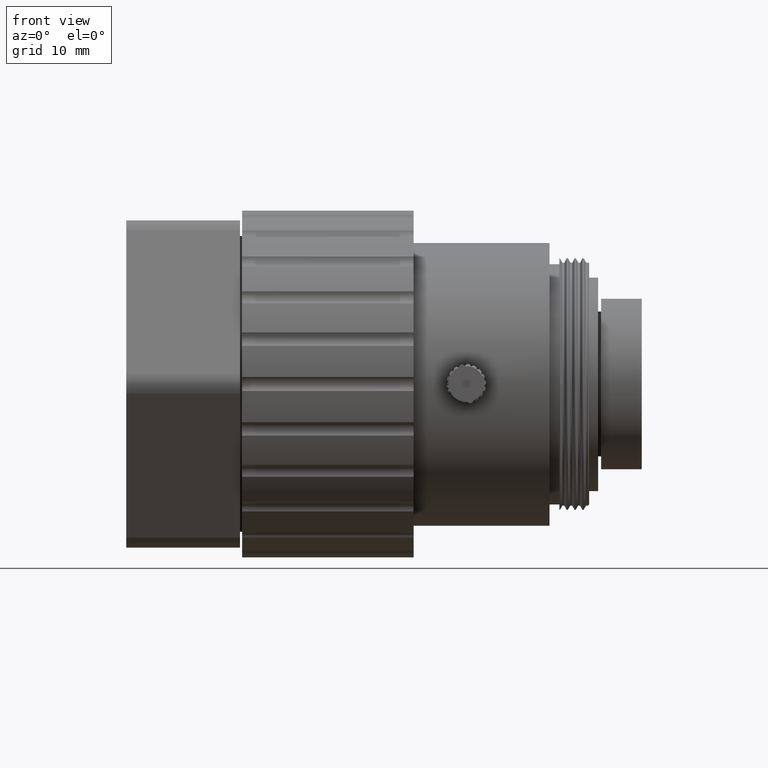
[diagram: clean part render]
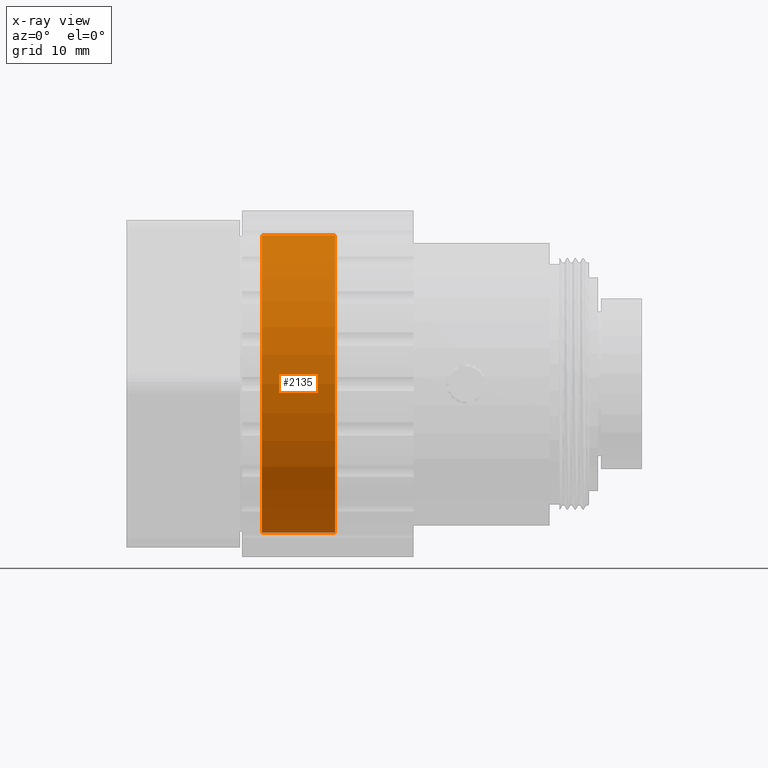
[diagram: x-ray — body ghosted, one internal face saturated and labeled with its STEP entity id]
A machine part, front view, then the same camera in x-ray: the body is ghosted and one INTERNAL B-rep face — a face not visible from any outside direction — is saturated and labeled: STEP entity #2135.
In plain terms, the highlighted cylindrical surface (bore or boss wall) has radius 15 mm, axis along (1, -0, -0).
Its self-contained STEP definition (entity closure, byte-faithful):
#118 = CYLINDRICAL_SURFACE ( 'NONE', #8766, 15.00000270789403345 ) ;
#920 = CARTESIAN_POINT ( 'NONE',  ( 10436.37415006260744, -3043.346037136861469, -15.00000270789403345 ) ) ;
#1900 = VERTEX_POINT ( 'NONE', #3192 ) ;
#2135 = ADVANCED_FACE ( 'NONE', ( #5645, #10098 ), #118, .F. ) ;
#2155 = CIRCLE ( 'NONE', #3075, 15.00000270789403345 ) ;
#2171 = EDGE_LOOP ( 'NONE', ( #5891 ) ) ;
#2452 = EDGE_LOOP ( 'NONE', ( #13500 ) ) ;
#2969 = CIRCLE ( 'NONE', #7822, 15.00000270789403345 ) ;
#3075 = AXIS2_PLACEMENT_3D ( 'NONE', #12345, #7956, #4474 ) ;
#3192 = CARTESIAN_POINT ( 'NONE',  ( 10443.77164489643110, -3043.346037136861469, -15.00000270789403345 ) ) ;
#3839 = CARTESIAN_POINT ( 'NONE',  ( 10473.70570216309352, -3043.346037136861469, 0.000000000000000000 ) ) ;
#3994 = EDGE_CURVE ( 'NONE', #1900, #1900, #2969, .T. ) ;
#4474 = DIRECTION ( 'NONE',  ( 0.000000000000000000, 0.000000000000000000, -1.000000000000000000 ) ) ;
#4869 = DIRECTION ( 'NONE',  ( 0.000000000000000000, 0.000000000000000000, -1.000000000000000000 ) ) ;
#4922 = DIRECTION ( 'NONE',  ( 0.000000000000000000, 0.000000000000000000, -1.000000000000000000 ) ) ;
#4940 = CARTESIAN_POINT ( 'NONE',  ( 10443.77164489643110, -3043.346037136861469, 0.000000000000000000 ) ) ;
#5645 = FACE_OUTER_BOUND ( 'NONE', #2452, .T. ) ;
#5891 = ORIENTED_EDGE ( 'NONE', *, *, #3994, .F. ) ;
#5952 = DIRECTION ( 'NONE',  ( -1.000000000000000000, 0.000000000000000000, 0.000000000000000000 ) ) ;
#7382 = VERTEX_POINT ( 'NONE', #920 ) ;
#7822 = AXIS2_PLACEMENT_3D ( 'NONE', #4940, #5952, #4869 ) ;
#7956 = DIRECTION ( 'NONE',  ( 1.000000000000000000, -0.000000000000000000, -0.000000000000000000 ) ) ;
#8481 = DIRECTION ( 'NONE',  ( 1.000000000000000000, -0.000000000000000000, -0.000000000000000000 ) ) ;
#8766 = AXIS2_PLACEMENT_3D ( 'NONE', #3839, #8481, #4922 ) ;
#10098 = FACE_OUTER_BOUND ( 'NONE', #2171, .T. ) ;
#12345 = CARTESIAN_POINT ( 'NONE',  ( 10436.37415006260744, -3043.346037136861469, 0.000000000000000000 ) ) ;
#12764 = EDGE_CURVE ( 'NONE', #7382, #7382, #2155, .T. ) ;
#13500 = ORIENTED_EDGE ( 'NONE', *, *, #12764, .F. ) ;